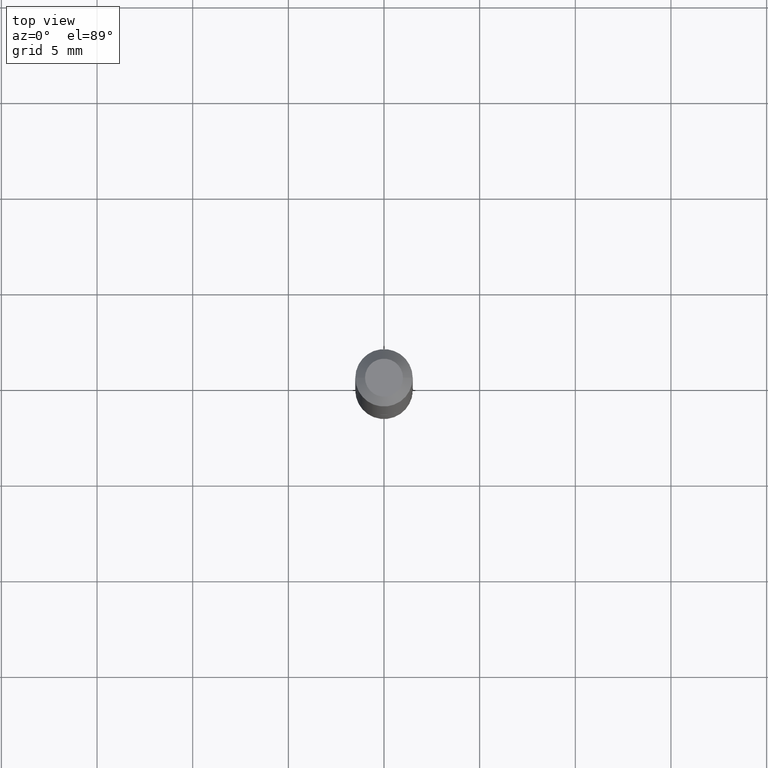
[diagram: clean part render]
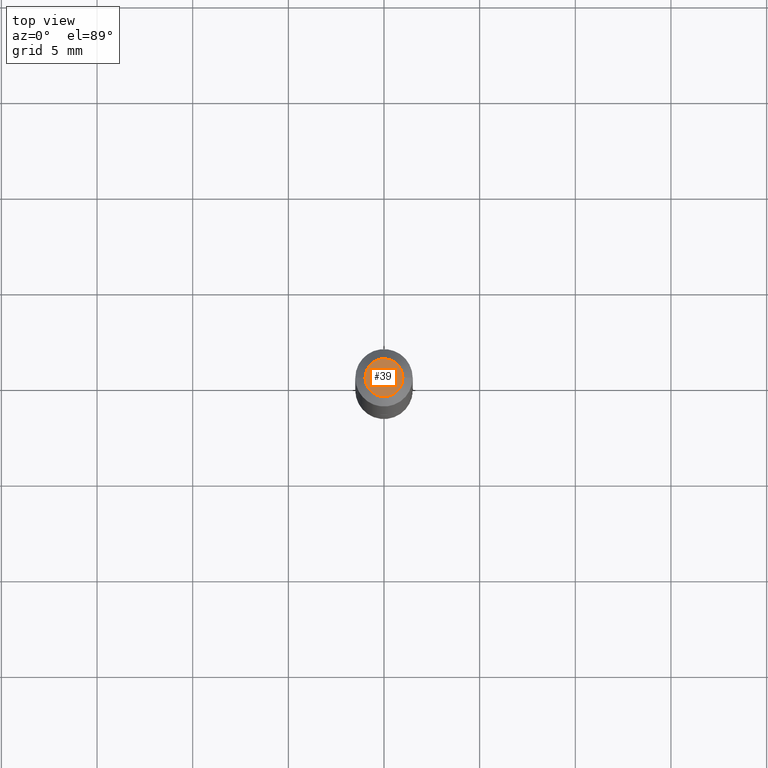
[diagram: same view with one face highlighted and labeled with its STEP entity id]
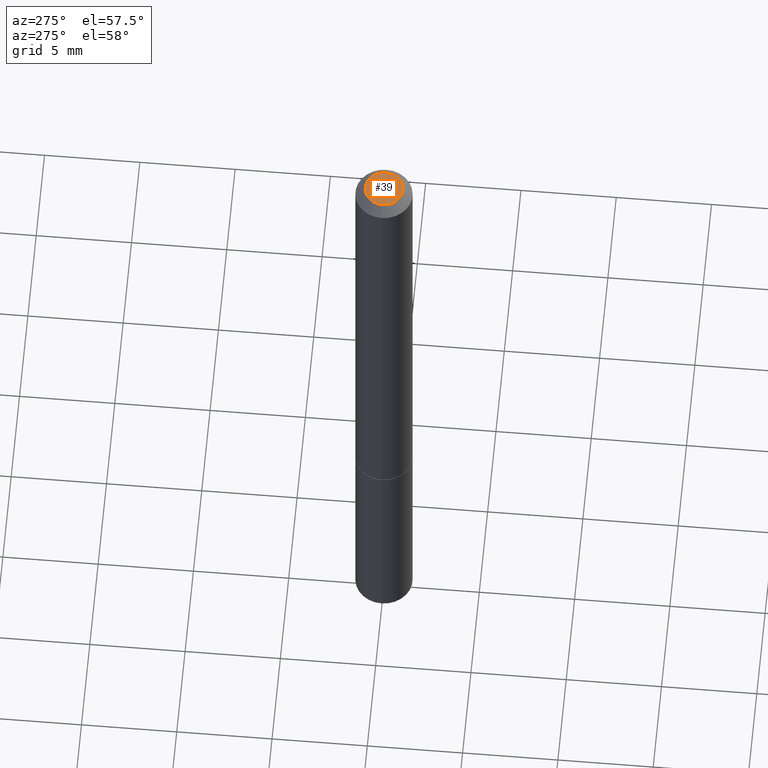
[diagram: same view with one face highlighted and labeled with its STEP entity id]
A machine part, top view. The second image highlights one B-rep face of the part: STEP entity #39.
A second angle (auxiliary view) of the same face is appended — the face is thin or edge-on in the first view.
In plain terms, the highlighted planar face has unit normal (0, -0, -1).
Its self-contained STEP definition (entity closure, byte-faithful):
#3 = DIRECTION ( 'NONE',  ( 2.438088387897960049E-29, -3.491481338843145188E-15, -1.000000000000000000 ) ) ;
#5 = CARTESIAN_POINT ( 'NONE',  ( 0.03904999999999989035, -3.714222401791245450E-16, -5.549066237130309406E-17 ) ) ;
#22 = AXIS2_PLACEMENT_3D ( 'NONE', #37, #174, #262 ) ;
#26 = CARTESIAN_POINT ( 'NONE',  ( -0.03904999999999989035, 3.075995059520788882E-16, -5.549066237130737733E-17 ) ) ;
#37 = CARTESIAN_POINT ( 'NONE',  ( 1.357006838635785746E-45, -1.937446121494581442E-31, -5.549066237130534971E-17 ) ) ;
#39 = ADVANCED_FACE ( 'NONE', ( #56 ), #107, .F. ) ;
#56 = FACE_OUTER_BOUND ( 'NONE', #283, .T. ) ;
#95 = EDGE_CURVE ( 'NONE', #306, #159, #236, .T. ) ;
#106 = CARTESIAN_POINT ( 'NONE',  ( 1.357006838635785746E-45, -1.937446121494581442E-31, -5.549066237130534971E-17 ) ) ;
#107 = PLANE ( 'NONE',  #316 ) ;
#122 = CIRCLE ( 'NONE', #253, 0.03904999999999989035 ) ;
#130 = ORIENTED_EDGE ( 'NONE', *, *, #95, .T. ) ;
#139 = DIRECTION ( 'NONE',  ( -1.000000000000000000, 6.982962677686265922E-15, -4.876176775795935793E-29 ) ) ;
#152 = DIRECTION ( 'NONE',  ( -2.445468806185136597E-29, 3.491481338843145583E-15, 1.000000000000000000 ) ) ;
#153 = ORIENTED_EDGE ( 'NONE', *, *, #321, .T. ) ;
#159 = VERTEX_POINT ( 'NONE', #5 ) ;
#167 = CARTESIAN_POINT ( 'NONE',  ( 2.726846925636479293E-16, 0.03904999999999989035, -1.640876774674771079E-16 ) ) ;
#174 = DIRECTION ( 'NONE',  ( -2.445468806185136597E-29, 3.491481338843145583E-15, 1.000000000000000000 ) ) ;
#216 = DIRECTION ( 'NONE',  ( 1.000000000000000000, -6.982962677686265922E-15, 4.873707401586876696E-29 ) ) ;
#236 = CIRCLE ( 'NONE', #22, 0.03904999999999989035 ) ;
#253 = AXIS2_PLACEMENT_3D ( 'NONE', #106, #152, #216 ) ;
#262 = DIRECTION ( 'NONE',  ( 1.000000000000000000, -6.982962677686265922E-15, 4.873707401586876696E-29 ) ) ;
#283 = EDGE_LOOP ( 'NONE', ( #130, #153 ) ) ;
#306 = VERTEX_POINT ( 'NONE', #26 ) ;
#316 = AXIS2_PLACEMENT_3D ( 'NONE', #167, #3, #139 ) ;
#321 = EDGE_CURVE ( 'NONE', #159, #306, #122, .T. ) ;